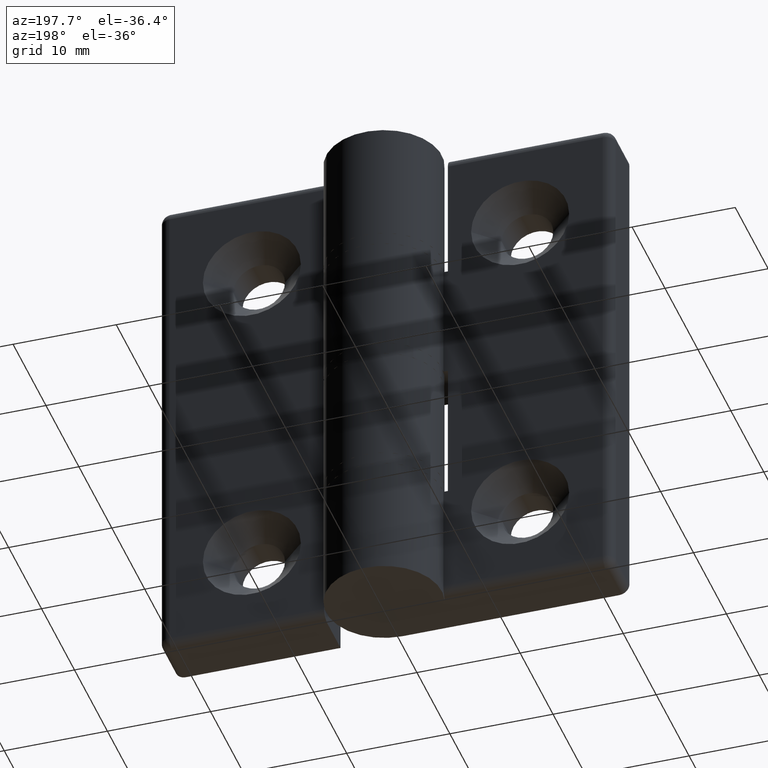
[diagram: clean part render]
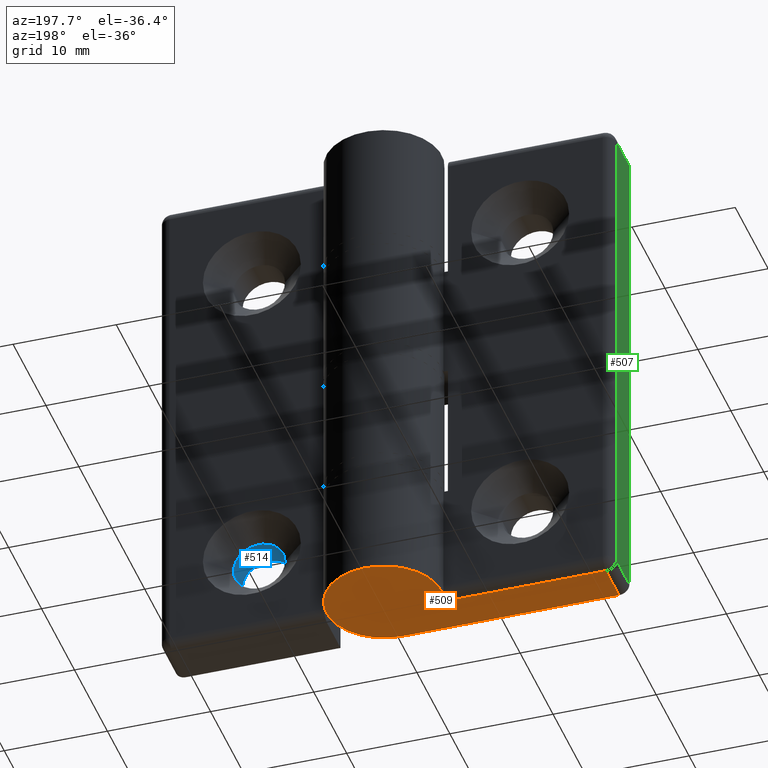
[diagram: same view with three faces highlighted in distinct colors, each labeled with its STEP entity id]
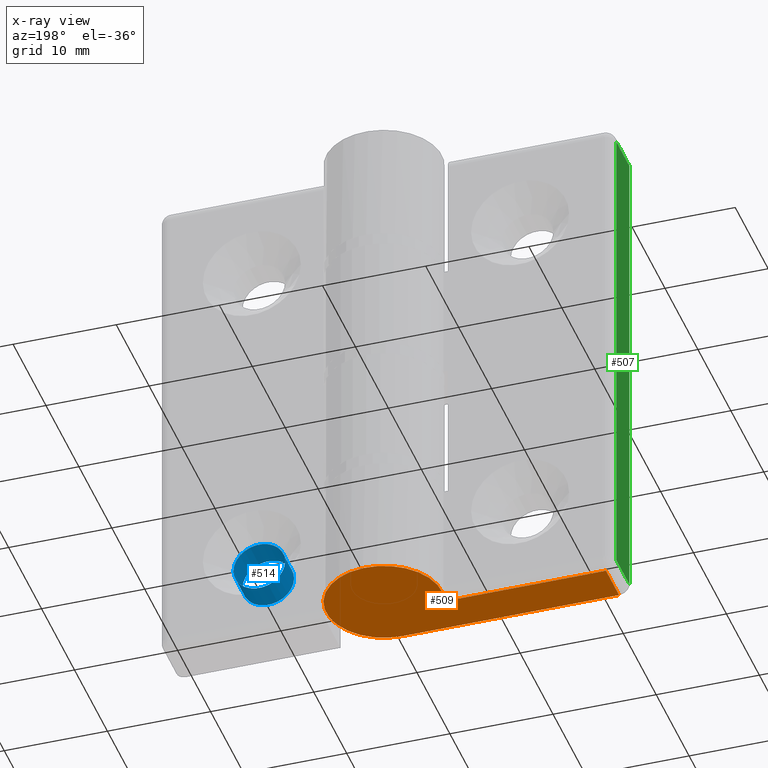
[diagram: x-ray of the same camera — body ghosted, the three highlighted faces saturated]
A machine part, auxiliary view with three faces highlighted in distinct colors.
The next image is the same camera in x-ray (body ghosted, the three faces saturated) — at least one of them is partly hidden behind the body in this view.
Their STEP definitions:

[orange] entity #509 — the highlighted planar face has unit normal (0, 0, -1).
#68=PLANE('',#555);
#93=FACE_OUTER_BOUND('',#126,.T.);
#126=EDGE_LOOP('',(#395,#396,#397,#398));
#174=LINE('',#818,#205);
#179=LINE('',#835,#210);
#180=LINE('',#840,#211);
#205=VECTOR('',#632,15.6334368540005);
#210=VECTOR('',#653,4.);
#211=VECTOR('',#660,21.);
#240=CIRCLE('',#556,5.6);
#267=VERTEX_POINT('',#803);
#269=VERTEX_POINT('',#807);
#273=VERTEX_POINT('',#834);
#274=VERTEX_POINT('',#838);
#315=EDGE_CURVE('',#269,#267,#174,.T.);
#323=EDGE_CURVE('',#267,#273,#179,.T.);
#325=EDGE_CURVE('',#269,#274,#240,.T.);
#326=EDGE_CURVE('',#274,#273,#180,.T.);
#395=ORIENTED_EDGE('',*,*,#315,.F.);
#396=ORIENTED_EDGE('',*,*,#325,.T.);
#397=ORIENTED_EDGE('',*,*,#326,.T.);
#398=ORIENTED_EDGE('',*,*,#323,.F.);
#509=ADVANCED_FACE('',(#93),#68,.T.);
#555=AXIS2_PLACEMENT_3D('',#837,#656,#657);
#556=AXIS2_PLACEMENT_3D('',#839,#658,#659);
#632=DIRECTION('',(-1.,-1.26161707343768E-16,0.));
#653=DIRECTION('',(0.,-1.,0.));
#656=DIRECTION('center_axis',(0.,0.,-1.));
#657=DIRECTION('ref_axis',(-1.,0.,0.));
#658=DIRECTION('center_axis',(0.,0.,-1.));
#659=DIRECTION('ref_axis',(-1.,0.,0.));
#660=DIRECTION('',(-1.,-1.22464679914735E-16,0.));
#803=CARTESIAN_POINT('',(-21.,4.,-50.));
#807=CARTESIAN_POINT('',(-5.3665631459995,4.,-50.));
#818=CARTESIAN_POINT('',(-16.5,4.,-50.));
#834=CARTESIAN_POINT('',(-21.,-2.57175827820944E-15,-50.));
#835=CARTESIAN_POINT('',(-21.,1.25,-50.));
#837=CARTESIAN_POINT('Origin',(-11.,2.5,-50.));
#838=CARTESIAN_POINT('',(0.,0.,-50.));
#839=CARTESIAN_POINT('Origin',(-6.66133814775094E-15,5.6,-50.));
#840=CARTESIAN_POINT('',(0.,0.,-50.));

[blue] entity #514 — the highlighted cylindrical surface (bore or boss wall) has radius 2.5 mm, axis along (0, 1, 0).
#54=FACE_BOUND('',#137,.T.);
#98=FACE_OUTER_BOUND('',#136,.T.);
#136=EDGE_LOOP('',(#417));
#137=EDGE_LOOP('',(#418));
#245=CIRCLE('',#565,2.5);
#246=CIRCLE('',#567,2.5);
#285=VERTEX_POINT('',#866);
#286=VERTEX_POINT('',#869);
#338=EDGE_CURVE('',#285,#285,#245,.T.);
#339=EDGE_CURVE('',#286,#286,#246,.T.);
#417=ORIENTED_EDGE('',*,*,#339,.F.);
#418=ORIENTED_EDGE('',*,*,#338,.T.);
#493=CYLINDRICAL_SURFACE('',#566,2.5);
#514=ADVANCED_FACE('',(#98,#54),#493,.F.);
#565=AXIS2_PLACEMENT_3D('',#867,#684,#685);
#566=AXIS2_PLACEMENT_3D('',#868,#686,#687);
#567=AXIS2_PLACEMENT_3D('',#870,#688,#689);
#684=DIRECTION('center_axis',(-1.26161707343768E-16,1.,0.));
#685=DIRECTION('ref_axis',(1.,1.26161707343768E-16,0.));
#686=DIRECTION('center_axis',(-1.26161707343768E-16,1.,0.));
#687=DIRECTION('ref_axis',(1.,1.26161707343768E-16,0.));
#688=DIRECTION('center_axis',(-1.22464679914735E-16,1.,0.));
#689=DIRECTION('ref_axis',(1.,1.26161707343768E-16,0.));
#866=CARTESIAN_POINT('',(-10.5,2.75,-9.));
#867=CARTESIAN_POINT('Origin',(-13.,2.75,-9.));
#868=CARTESIAN_POINT('Origin',(-13.,-53.1996563563738,-9.));
#869=CARTESIAN_POINT('',(-15.5,-3.15404268359419E-16,-9.));
#870=CARTESIAN_POINT('Origin',(-13.,0.,-9.));

[green] entity #507 — the highlighted planar face has unit normal (-1, 0, 0).
#67=PLANE('',#552);
#91=FACE_OUTER_BOUND('',#124,.T.);
#124=EDGE_LOOP('',(#387,#388,#389,#390));
#172=LINE('',#801,#203);
#175=LINE('',#825,#206);
#177=LINE('',#831,#208);
#178=LINE('',#832,#209);
#203=VECTOR('',#626,48.);
#206=VECTOR('',#643,4.);
#208=VECTOR('',#649,4.);
#209=VECTOR('',#650,48.);
#264=VERTEX_POINT('',#795);
#266=VERTEX_POINT('',#799);
#270=VERTEX_POINT('',#824);
#272=VERTEX_POINT('',#830);
#311=EDGE_CURVE('',#266,#264,#172,.T.);
#318=EDGE_CURVE('',#264,#270,#175,.T.);
#321=EDGE_CURVE('',#272,#266,#177,.T.);
#322=EDGE_CURVE('',#270,#272,#178,.T.);
#387=ORIENTED_EDGE('',*,*,#311,.F.);
#388=ORIENTED_EDGE('',*,*,#321,.F.);
#389=ORIENTED_EDGE('',*,*,#322,.F.);
#390=ORIENTED_EDGE('',*,*,#318,.F.);
#507=ADVANCED_FACE('',(#91),#67,.T.);
#552=AXIS2_PLACEMENT_3D('',#829,#647,#648);
#626=DIRECTION('',(0.,0.,1.));
#643=DIRECTION('',(0.,-1.,0.));
#647=DIRECTION('center_axis',(-1.,0.,0.));
#648=DIRECTION('ref_axis',(0.,1.,0.));
#649=DIRECTION('',(0.,1.,0.));
#650=DIRECTION('',(0.,0.,-1.));
#795=CARTESIAN_POINT('',(-22.,4.,-1.));
#799=CARTESIAN_POINT('',(-22.,4.,-49.));
#801=CARTESIAN_POINT('',(-22.,4.,0.));
#824=CARTESIAN_POINT('',(-22.,-2.69422295812418E-15,-1.));
#825=CARTESIAN_POINT('',(-22.,2.8,-1.));
#829=CARTESIAN_POINT('Origin',(-22.,-2.69422295812418E-15,0.));
#830=CARTESIAN_POINT('',(-22.,-2.69422295812418E-15,-49.));
#831=CARTESIAN_POINT('',(-22.,1.25,-49.));
#832=CARTESIAN_POINT('',(-22.,-2.69422295812418E-15,0.));